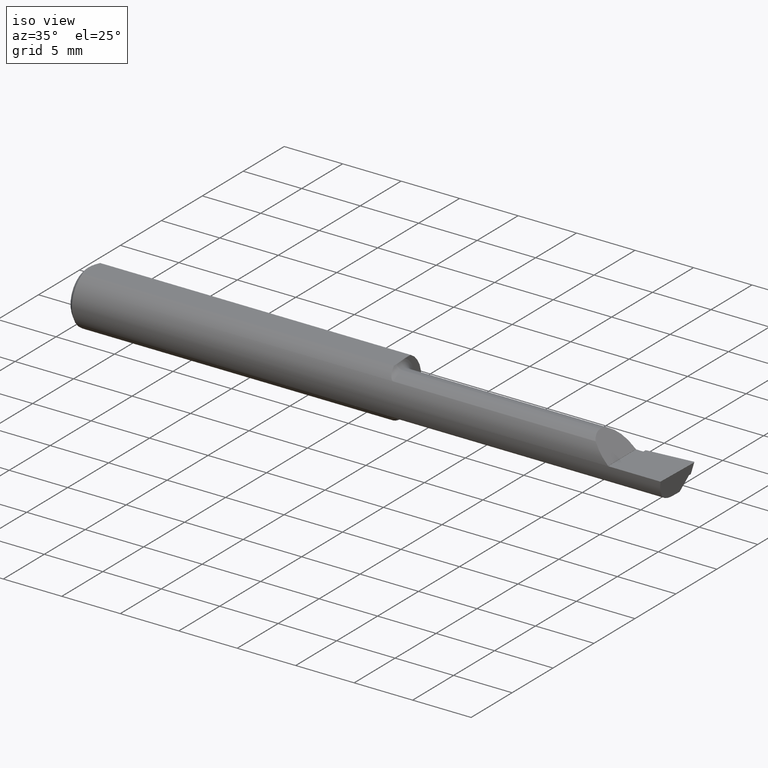
[diagram: clean part render]
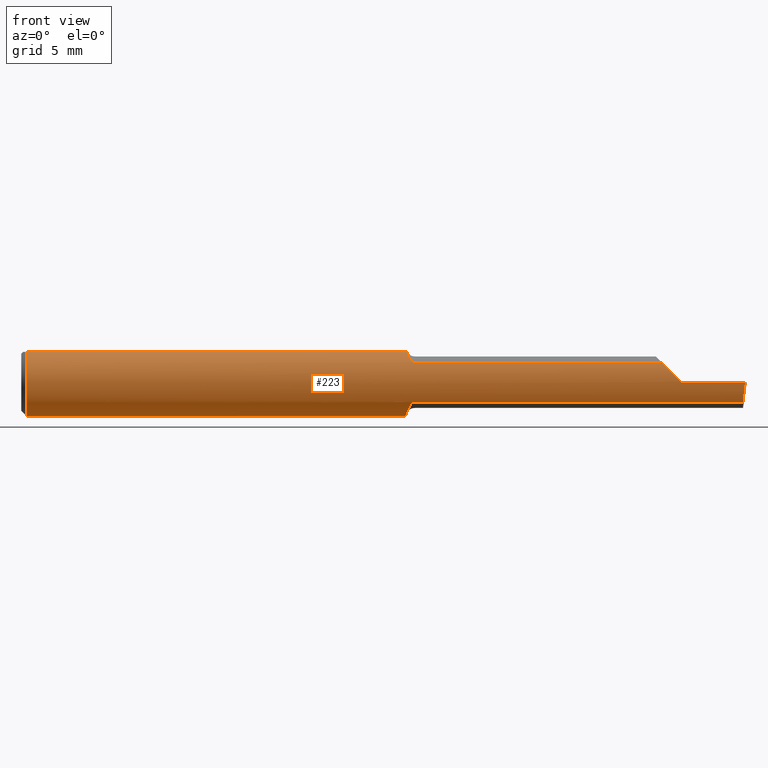
[diagram: tour spotlight — one face highlighted and labeled with its STEP entity id]
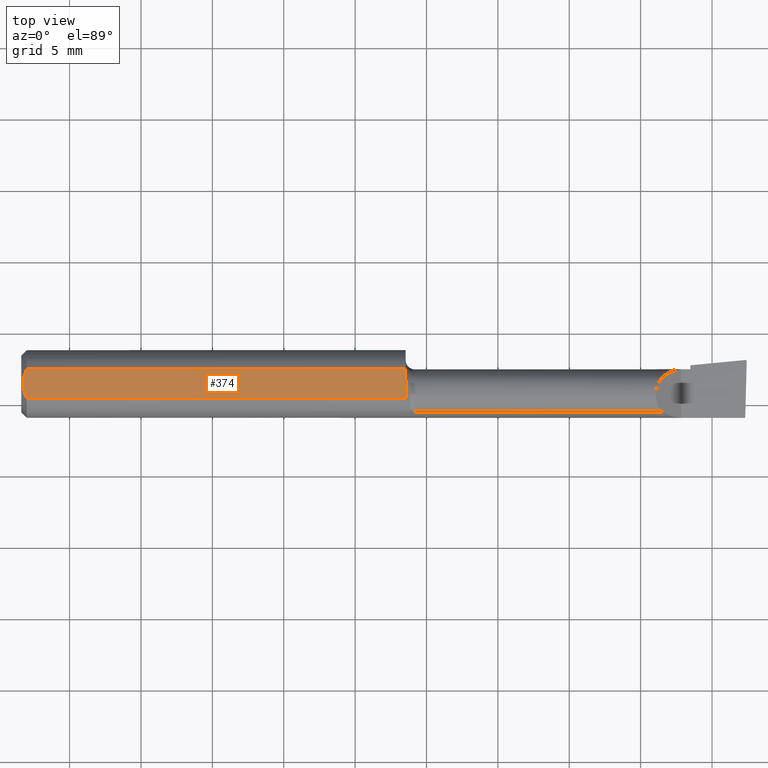
[diagram: tour spotlight — one face highlighted and labeled with its STEP entity id]
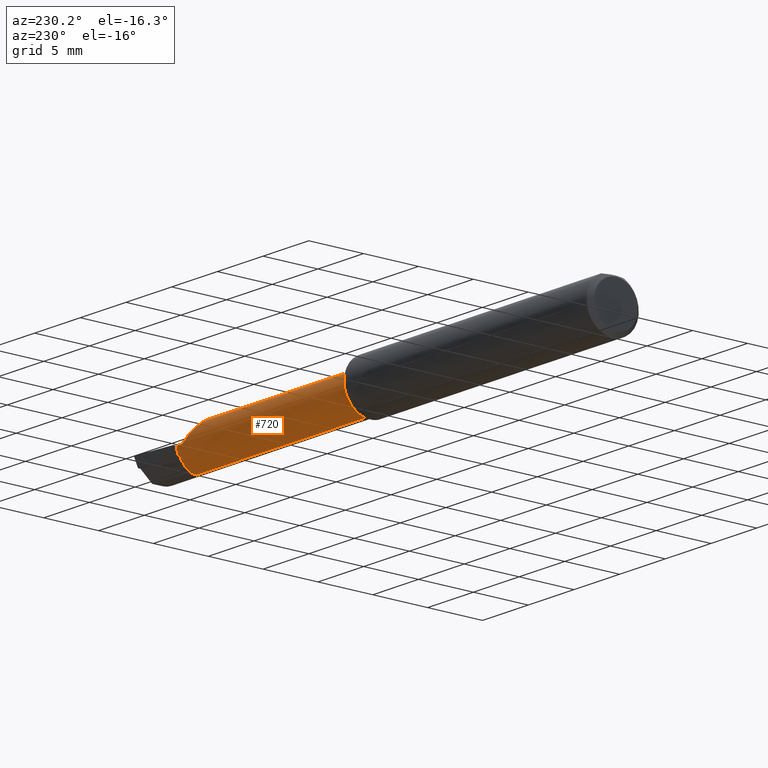
[diagram: tour spotlight — one face highlighted and labeled with its STEP entity id]
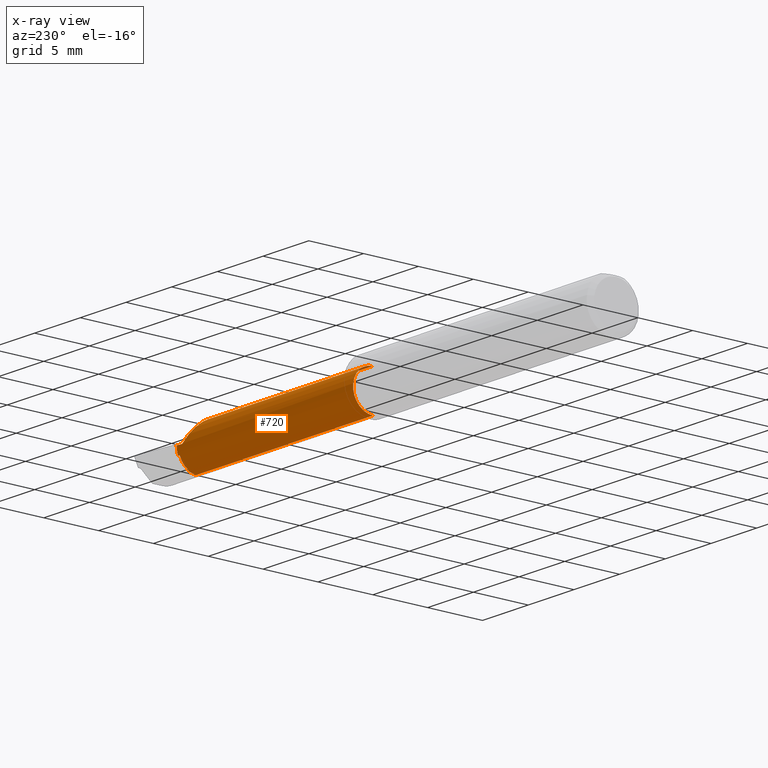
[diagram: x-ray of the same camera — body ghosted, this tour face saturated]
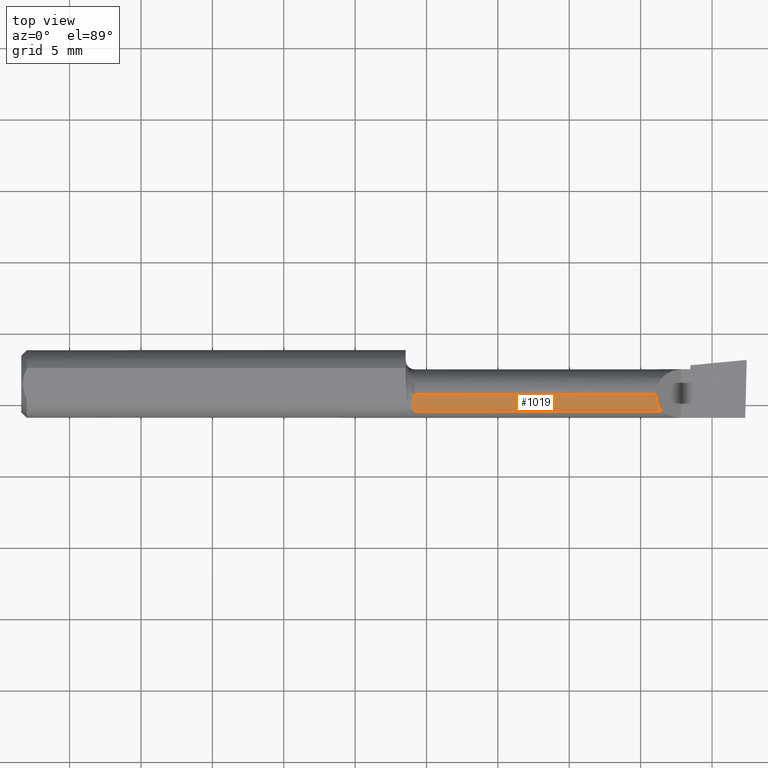
[diagram: tour spotlight — one face highlighted and labeled with its STEP entity id]
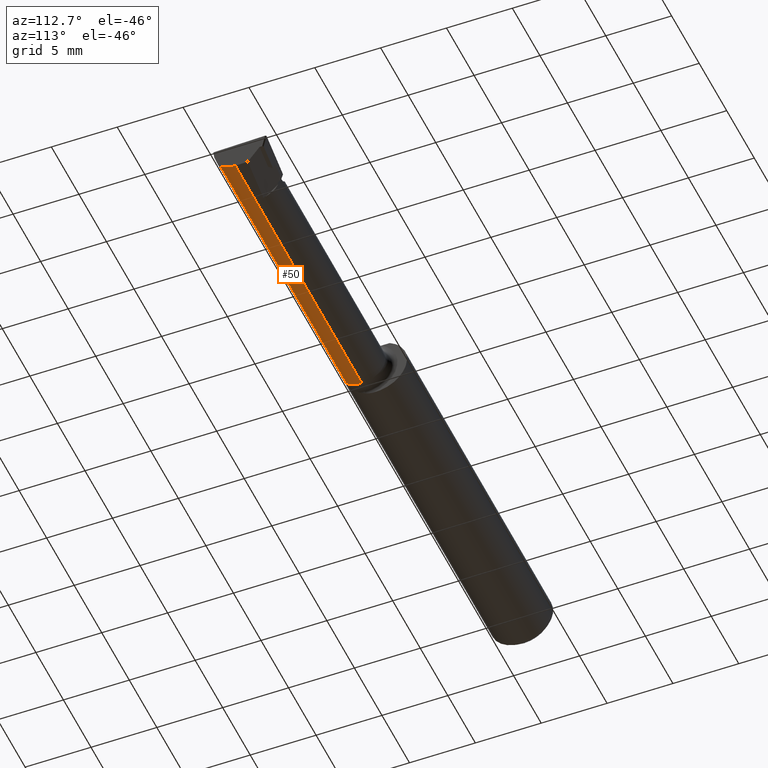
[diagram: tour spotlight — one face highlighted and labeled with its STEP entity id]
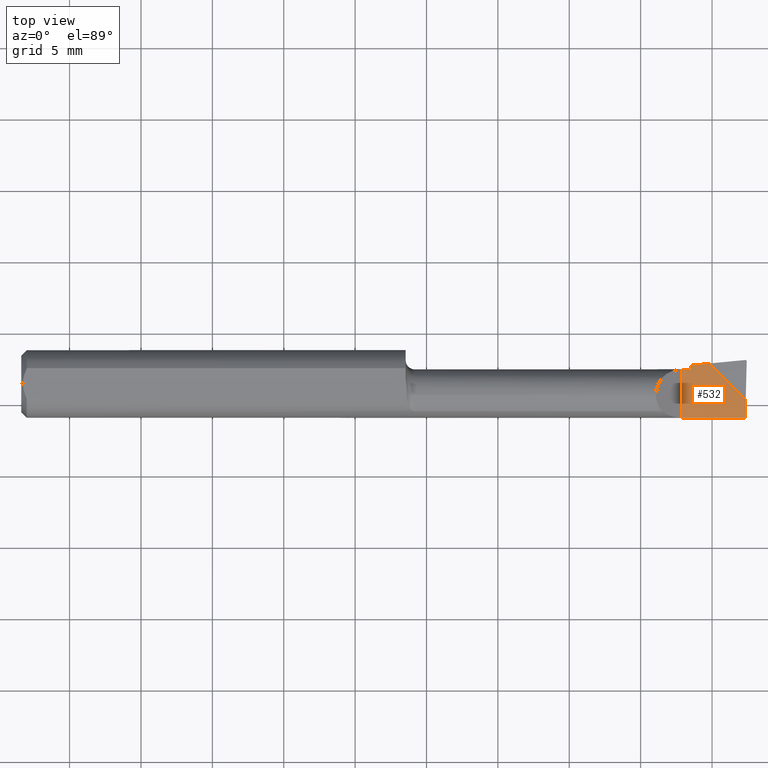
[diagram: tour spotlight — one face highlighted and labeled with its STEP entity id]
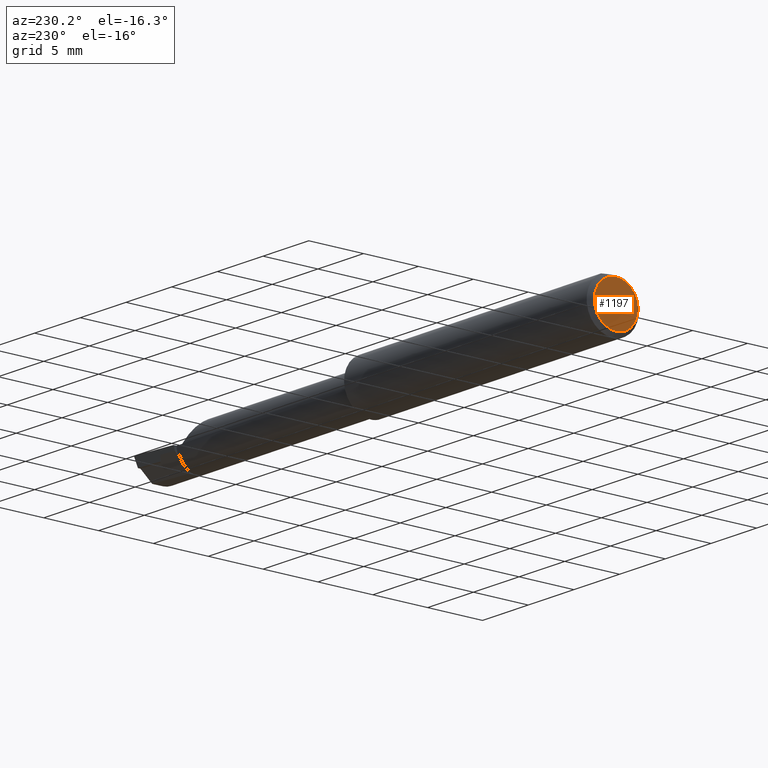
[diagram: tour spotlight — one face highlighted and labeled with its STEP entity id]
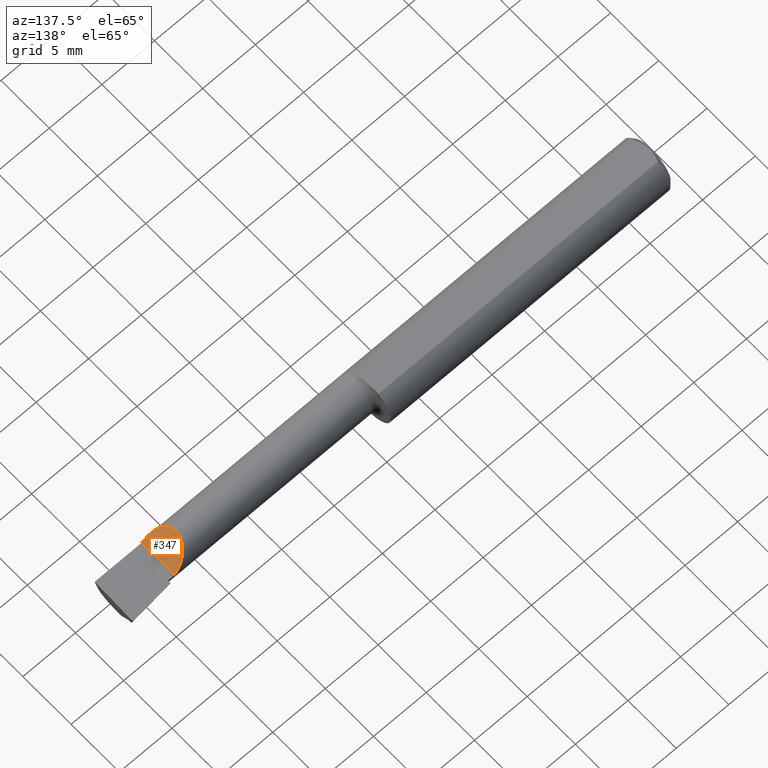
[diagram: tour spotlight — one face highlighted and labeled with its STEP entity id]
A machine part: a face-by-face anatomy tour. The part has 30 B-rep faces; the first image is the clean iso view, then the 8 largest visible faces are spotlighted one at a time (largest first), each with its STEP entity span.

Face 1 — front view, entity #223. In plain terms, the highlighted cylindrical surface (edge-blend (fillet) strip) has radius 2.3774 mm, axis along (-1, -0, -0).
Definition (entity closure, byte-faithful):
#2 = CARTESIAN_POINT ( 'NONE',  ( 26.93316680156829435, -0.5906470848080465075, -2.311350338476107602 ) ) ;
#28 = CIRCLE ( 'NONE', #598, 2.377439999999999998 ) ;
#33 = CARTESIAN_POINT ( 'NONE',  ( 50.70752380417522431, -2.377440000000000442, -3.252606517456513302E-16 ) ) ;
#39 = EDGE_CURVE ( 'NONE', #231, #933, #151, .T. ) ;
#40 = LINE ( 'NONE', #964, #292 ) ;
#49 = CARTESIAN_POINT ( 'NONE',  ( 44.85847713066682019, -1.932524967320258247, 1.384762869333169277 ) ) ;
#54 = CARTESIAN_POINT ( 'NONE',  ( 27.24627194371097261, -1.746696332958888709, 1.615645346097394741 ) ) ;
#60 = CARTESIAN_POINT ( 'NONE',  ( 50.54923430675796681, -1.932524967320262022, -1.384762869333165280 ) ) ;
#62 = AXIS2_PLACEMENT_3D ( 'NONE', #85, #1130, #760 ) ;
#63 = VERTEX_POINT ( 'NONE', #158 ) ;
#69 = CIRCLE ( 'NONE', #88, 2.377439999999999998 ) ;
#75 = CARTESIAN_POINT ( 'NONE',  ( 50.79999999999999716, -1.069216311136338415, 2.123439999999999994 ) ) ;
#85 = CARTESIAN_POINT ( 'NONE',  ( 50.79999999999999716, 0.000000000000000000, 0.000000000000000000 ) ) ;
#88 = AXIS2_PLACEMENT_3D ( 'NONE', #414, #707, #986 ) ;
#101 = ORIENTED_EDGE ( 'NONE', *, *, #920, .T. ) ;
#128 = CARTESIAN_POINT ( 'NONE',  ( 26.95359502680988939, -0.7772400000000005971, -2.246801935195890998 ) ) ;
#147 = VERTEX_POINT ( 'NONE', #829 ) ;
#151 = LINE ( 'NONE', #274, #230 ) ;
#155 = B_SPLINE_CURVE_WITH_KNOTS ( 'NONE', 3,
 ( #649, #1103, #930, #1124, #835, #54, #1212, #444, #813, #643 ),
 .UNSPECIFIED., .F., .F.,
 ( 4, 2, 2, 2, 4 ),
 ( 0.000000000000000000, 0.0001677780048688582652, 0.0003355560097377165304, 0.0006711120194754334944, 0.001342224038950866989 ),
 .UNSPECIFIED. ) ;
#158 = CARTESIAN_POINT ( 'NONE',  ( 26.92399999999999949, 1.069216311136338193, 2.123439999999999994 ) ) ;
#165 = ORIENTED_EDGE ( 'NONE', *, *, #348, .T. ) ;
#172 = CARTESIAN_POINT ( 'NONE',  ( 46.22800000000000153, -2.377391153344354358, 0.01523999999999297618 ) ) ;
#182 = EDGE_CURVE ( 'NONE', #704, #147, #738, .T. ) ;
#192 = EDGE_CURVE ( 'NONE', #217, #697, #205, .T. ) ;
#204 = CARTESIAN_POINT ( 'NONE',  ( 44.85847713066682019, -1.932524967320258247, 1.384762869333169277 ) ) ;
#205 = B_SPLINE_CURVE_WITH_KNOTS ( 'NONE', 3,
 ( #856, #1224, #2, #298 ),
 .UNSPECIFIED., .F., .F.,
 ( 4, 4 ),
 ( 0.000000000000000000, 0.0005909717450447482577 ),
 .UNSPECIFIED. ) ;
#210 = EDGE_CURVE ( 'NONE', #704, #933, #1092, .T. ) ;
#217 = VERTEX_POINT ( 'NONE', #934 ) ;
#218 = CARTESIAN_POINT ( 'NONE',  ( 0.3809999999992708108, -1.069216311139973508, 2.123439999999999994 ) ) ;
#223 = ADVANCED_FACE ( 'NONE', ( #1153 ), #386, .T. ) ;
#227 = CARTESIAN_POINT ( 'NONE',  ( 27.20065381243102820, -1.680929914004957615, -1.685690896730938082 ) ) ;
#230 = VECTOR ( 'NONE', #359, 1000.000000000000000 ) ;
#231 = VERTEX_POINT ( 'NONE', #469 ) ;
#245 = VERTEX_POINT ( 'NONE', #577 ) ;
#258 = DIRECTION ( 'NONE',  ( -1.000000000000000000, -0.000000000000000000, -0.000000000000000000 ) ) ;
#272 = ORIENTED_EDGE ( 'NONE', *, *, #1094, .T. ) ;
#274 = CARTESIAN_POINT ( 'NONE',  ( 36.89350000000000307, -1.932524967320262244, 1.384762869333165058 ) ) ;
#279 = EDGE_CURVE ( 'NONE', #615, #245, #393, .T. ) ;
#280 = ORIENTED_EDGE ( 'NONE', *, *, #967, .F. ) ;
#292 = VECTOR ( 'NONE', #711, 1000.000000000000000 ) ;
#298 = CARTESIAN_POINT ( 'NONE',  ( 26.95359502680988939, -0.7772400000000005971, -2.246801935195890998 ) ) ;
#304 = CARTESIAN_POINT ( 'NONE',  ( 26.99667307896505974, -1.069216311136338415, 2.123439999999999994 ) ) ;
#324 = ORIENTED_EDGE ( 'NONE', *, *, #539, .T. ) ;
#325 = CARTESIAN_POINT ( 'NONE',  ( 0.3809999999999993947, 0.000000000000000000, 0.000000000000000000 ) ) ;
#338 = CARTESIAN_POINT ( 'NONE',  ( 27.52373730727167711, -1.932524967320291109, -1.384762869333152180 ) ) ;
#339 = ORIENTED_EDGE ( 'NONE', *, *, #182, .F. ) ;
#341 = CARTESIAN_POINT ( 'NONE',  ( 27.55900000000000105, -1.932524967320262244, -1.384762869333165058 ) ) ;
#348 = EDGE_CURVE ( 'NONE', #697, #913, #540, .T. ) ;
#359 = DIRECTION ( 'NONE',  ( 1.000000000000000000, 0.000000000000000000, 0.000000000000000000 ) ) ;
#376 = ORIENTED_EDGE ( 'NONE', *, *, #527, .T. ) ;
#378 = CARTESIAN_POINT ( 'NONE',  ( 45.73250996477317187, -2.374214869910208581, 0.5107300352268197008 ) ) ;
#385 = LINE ( 'NONE', #75, #1105 ) ;
#386 = CYLINDRICAL_SURFACE ( 'NONE', #62, 2.377439999999999998 ) ;
#393 = CIRCLE ( 'NONE', #818, 2.377439999999999998 ) ;
#394 = DIRECTION ( 'NONE',  ( 1.000000000000000000, -0.000000000000000000, 0.000000000000000000 ) ) ;
#398 = CARTESIAN_POINT ( 'NONE',  ( 50.64602938446594749, -2.377439999999999110, -0.5008318574996006856 ) ) ;
#410 = CARTESIAN_POINT ( 'NONE',  ( 27.33524380985003077, -1.841756582495868155, -1.504269776298313932 ) ) ;
#414 = CARTESIAN_POINT ( 'NONE',  ( 26.92399999999999949, 0.000000000000000000, 0.000000000000000000 ) ) ;
#435 = EDGE_CURVE ( 'NONE', #1020, #913, #40, .T. ) ;
#444 = CARTESIAN_POINT ( 'NONE',  ( 27.08590465488719090, -1.445156649963297957, 1.899248549121113516 ) ) ;
#457 = VECTOR ( 'NONE', #521, 1000.000000000000000 ) ;
#460 = ORIENTED_EDGE ( 'NONE', *, *, #210, .T. ) ;
#469 = CARTESIAN_POINT ( 'NONE',  ( 27.55900000000000105, -1.932524967320262244, 1.384762869333165058 ) ) ;
#472 = CARTESIAN_POINT ( 'NONE',  ( 26.95359502680988939, -0.7772400000000005971, -2.246801935195890998 ) ) ;
#496 = CARTESIAN_POINT ( 'NONE',  ( 26.98206824592344688, -1.037316482243745064, -2.156833237068743969 ) ) ;
#511 = ORIENTED_EDGE ( 'NONE', *, *, #543, .T. ) ;
#521 = DIRECTION ( 'NONE',  ( 1.000000000000000000, 0.000000000000000000, 0.000000000000000000 ) ) ;
#527 = EDGE_CURVE ( 'NONE', #970, #147, #723, .T. ) ;
#539 = EDGE_CURVE ( 'NONE', #1020, #970, #998, .T. ) ;
#540 = B_SPLINE_CURVE_WITH_KNOTS ( 'NONE', 3,
 ( #128, #496, #1071, #1062, #227, #861, #410, #776, #1181, #1085, #338, #982 ),
 .UNSPECIFIED., .F., .F.,
 ( 4, 2, 2, 2, 2, 4 ),
 ( 0.0005909717450447482577, 0.001414678542264614231, 0.001826531940874547271, 0.002032458640179514008, 0.002135421989831996943, 0.002238385339484480312 ),
 .UNSPECIFIED. ) ;
#543 = EDGE_CURVE ( 'NONE', #1208, #866, #385, .T. ) ;
#570 = CARTESIAN_POINT ( 'NONE',  ( 45.26124924613768741, -2.221133849346881295, 0.9819907538622970611 ) ) ;
#577 = CARTESIAN_POINT ( 'NONE',  ( 0.3809999999999993947, 1.069216311136338193, 2.123439999999999994 ) ) ;
#598 = AXIS2_PLACEMENT_3D ( 'NONE', #325, #617, #609 ) ;
#606 = ORIENTED_EDGE ( 'NONE', *, *, #279, .T. ) ;
#609 = DIRECTION ( 'NONE',  ( 0.000000000000000000, 0.000000000000000000, -1.000000000000000000 ) ) ;
#615 = VERTEX_POINT ( 'NONE', #1229 ) ;
#617 = DIRECTION ( 'NONE',  ( 1.000000000000000000, -0.000000000000000000, -0.000000000000000000 ) ) ;
#637 = CARTESIAN_POINT ( 'NONE',  ( 46.22800000000000153, 0.000000000000000000, 0.000000000000000000 ) ) ;
#643 = CARTESIAN_POINT ( 'NONE',  ( 26.99667307896505974, -1.069216311136338415, 2.123439999999999994 ) ) ;
#649 = CARTESIAN_POINT ( 'NONE',  ( 27.55900000000000105, -1.932524967320262244, 1.384762869333165058 ) ) ;
#660 = DIRECTION ( 'NONE',  ( -1.000000000000000000, -0.000000000000000000, -0.000000000000000000 ) ) ;
#676 = ORIENTED_EDGE ( 'NONE', *, *, #435, .F. ) ;
#680 = DIRECTION ( 'NONE',  ( 1.000000000000000000, -0.000000000000000000, -0.000000000000000000 ) ) ;
#683 = DIRECTION ( 'NONE',  ( 0.000000000000000000, 0.000000000000000000, -1.000000000000000000 ) ) ;
#694 = ORIENTED_EDGE ( 'NONE', *, *, #39, .F. ) ;
#697 = VERTEX_POINT ( 'NONE', #472 ) ;
#704 = VERTEX_POINT ( 'NONE', #172 ) ;
#707 = DIRECTION ( 'NONE',  ( 1.000000000000000000, 0.000000000000000000, 0.000000000000000000 ) ) ;
#711 = DIRECTION ( 'NONE',  ( -1.000000000000000000, -0.000000000000000000, -0.000000000000000000 ) ) ;
#723 = LINE ( 'NONE', #1106, #727 ) ;
#727 = VECTOR ( 'NONE', #258, 1000.000000000000000 ) ;
#738 = CIRCLE ( 'NONE', #956, 2.377439999999999998 ) ;
#742 = CARTESIAN_POINT ( 'NONE',  ( 50.59152446203115261, -2.224239315545497586, -0.9776568775742312534 ) ) ;
#747 = ORIENTED_EDGE ( 'NONE', *, *, #192, .T. ) ;
#752 = CARTESIAN_POINT ( 'NONE',  ( 46.22800000000000153, -2.377391153344354358, 0.01523999999999297618 ) ) ;
#760 = DIRECTION ( 'NONE',  ( 0.000000000000000000, 0.000000000000000000, 1.000000000000000000 ) ) ;
#776 = CARTESIAN_POINT ( 'NONE',  ( 27.40508291531577356, -1.889504432616559315, -1.443143247077445679 ) ) ;
#810 = LINE ( 'NONE', #1076, #457 ) ;
#813 = CARTESIAN_POINT ( 'NONE',  ( 27.03412360235253686, -1.266098155268266190, 2.024304032366151862 ) ) ;
#818 = AXIS2_PLACEMENT_3D ( 'NONE', #1144, #680, #1028 ) ;
#829 = CARTESIAN_POINT ( 'NONE',  ( 46.22800000000000153, -2.377439999999999998, -6.505213034913026604E-16 ) ) ;
#835 = CARTESIAN_POINT ( 'NONE',  ( 27.33536447019917048, -1.839262941281538444, 1.507180161431583398 ) ) ;
#856 = CARTESIAN_POINT ( 'NONE',  ( 26.92399999999999949, -0.1997635294117658944, -2.369032605498910371 ) ) ;
#861 = CARTESIAN_POINT ( 'NONE',  ( 27.29833921319878698, -1.803620501935298881, -1.550125347827790989 ) ) ;
#866 = VERTEX_POINT ( 'NONE', #218 ) ;
#879 = EDGE_LOOP ( 'NONE', ( #676, #324, #376, #339, #460, #694, #272, #511, #101, #606, #1179, #280, #747, #165 ) ) ;
#881 = EDGE_CURVE ( 'NONE', #245, #63, #810, .T. ) ;
#913 = VERTEX_POINT ( 'NONE', #341 ) ;
#920 = EDGE_CURVE ( 'NONE', #866, #615, #28, .T. ) ;
#930 = CARTESIAN_POINT ( 'NONE',  ( 27.45075819883399149, -1.914296983271151387, 1.410378004019683829 ) ) ;
#932 = CARTESIAN_POINT ( 'NONE',  ( 50.70752380417522431, -2.377440000000000442, -3.252606517456513302E-16 ) ) ;
#933 = VERTEX_POINT ( 'NONE', #49 ) ;
#934 = CARTESIAN_POINT ( 'NONE',  ( 26.92399999999999949, -0.1997635294117658944, -2.369032605498910371 ) ) ;
#956 = AXIS2_PLACEMENT_3D ( 'NONE', #637, #394, #683 ) ;
#964 = CARTESIAN_POINT ( 'NONE',  ( 36.89350000000000307, -1.932524967320262244, -1.384762869333165058 ) ) ;
#967 = EDGE_CURVE ( 'NONE', #217, #63, #69, .T. ) ;
#970 = VERTEX_POINT ( 'NONE', #33 ) ;
#982 = CARTESIAN_POINT ( 'NONE',  ( 27.55900000000000105, -1.932524967320262244, -1.384762869333165058 ) ) ;
#986 = DIRECTION ( 'NONE',  ( 0.000000000000000000, 0.000000000000000000, -1.000000000000000000 ) ) ;
#998 =( BOUNDED_CURVE ( )  B_SPLINE_CURVE ( 3, ( #1046, #742, #398, #932 ),
 .UNSPECIFIED., .F., .F. ) 
 B_SPLINE_CURVE_WITH_KNOTS ( ( 4, 4 ),
 ( 0.7373942140986471383, 1.359145557743775212 ),
 .UNSPECIFIED. ) 
 CURVE ( )  GEOMETRIC_REPRESENTATION_ITEM ( )  RATIONAL_B_SPLINE_CURVE ( ( 1.000000000000000000, 0.9680440490283191979, 0.9680440490283191979, 1.000000000000000000 ) ) 
 REPRESENTATION_ITEM ( '' )  );
#1020 = VERTEX_POINT ( 'NONE', #60 ) ;
#1028 = DIRECTION ( 'NONE',  ( 0.000000000000000000, 0.000000000000000000, -1.000000000000000000 ) ) ;
#1046 = CARTESIAN_POINT ( 'NONE',  ( 50.54923430675796681, -1.932524967320262022, -1.384762869333165280 ) ) ;
#1062 = CARTESIAN_POINT ( 'NONE',  ( 27.15216824647992411, -1.585967451514963988, -1.776094618710650330 ) ) ;
#1071 = CARTESIAN_POINT ( 'NONE',  ( 27.02981098855984854, -1.274942537004539522, -2.024124026350070604 ) ) ;
#1076 = CARTESIAN_POINT ( 'NONE',  ( 50.79999999999999716, 1.069216311136338193, 2.123439999999999994 ) ) ;
#1085 = CARTESIAN_POINT ( 'NONE',  ( 27.48958784584748472, -1.925335719837831361, -1.394860538933796468 ) ) ;
#1092 =( BOUNDED_CURVE ( )  B_SPLINE_CURVE ( 3, ( #752, #378, #570, #204 ),
 .UNSPECIFIED., .F., .F. ) 
 B_SPLINE_CURVE_WITH_KNOTS ( ( 4, 4 ),
 ( 4.718799280696809539, 5.334140324029819524 ),
 .UNSPECIFIED. ) 
 CURVE ( )  GEOMETRIC_REPRESENTATION_ITEM ( )  RATIONAL_B_SPLINE_CURVE ( ( 1.000000000000000000, 0.9686944085491864254, 0.9686944085491864254, 1.000000000000000000 ) ) 
 REPRESENTATION_ITEM ( '' )  );
#1094 = EDGE_CURVE ( 'NONE', #231, #1208, #155, .T. ) ;
#1103 = CARTESIAN_POINT ( 'NONE',  ( 27.50190815464640437, -1.932524967320262688, 1.384762869333165280 ) ) ;
#1105 = VECTOR ( 'NONE', #660, 1000.000000000000000 ) ;
#1106 = CARTESIAN_POINT ( 'NONE',  ( 50.79999999999999716, -2.377439999999999998, -6.505213034913026604E-16 ) ) ;
#1124 = CARTESIAN_POINT ( 'NONE',  ( 27.36856062862259975, -1.867692931192260986, 1.471537348883146912 ) ) ;
#1130 = DIRECTION ( 'NONE',  ( -1.000000000000000000, -0.000000000000000000, -0.000000000000000000 ) ) ;
#1144 = CARTESIAN_POINT ( 'NONE',  ( 0.3809999999999993947, 0.000000000000000000, 0.000000000000000000 ) ) ;
#1153 = FACE_OUTER_BOUND ( 'NONE', #879, .T. ) ;
#1179 = ORIENTED_EDGE ( 'NONE', *, *, #881, .T. ) ;
#1181 = CARTESIAN_POINT ( 'NONE',  ( 27.43070174924277538, -1.903710356681037830, -1.424233279706486721 ) ) ;
#1208 = VERTEX_POINT ( 'NONE', #304 ) ;
#1212 = CARTESIAN_POINT ( 'NONE',  ( 27.20210128635854474, -1.676377683405150920, 1.689032053085177454 ) ) ;
#1224 = CARTESIAN_POINT ( 'NONE',  ( 26.92399999999999949, -0.3981623393507754405, -2.352303056731824160 ) ) ;
#1229 = CARTESIAN_POINT ( 'NONE',  ( 0.3809999999999993947, 0.000000000000000000, -2.377439999999999998 ) ) ;

Face 2 — top view, entity #374. In plain terms, the highlighted planar face has unit normal (0, 0, -1).
Definition (entity closure, byte-faithful):
#4 = CARTESIAN_POINT ( 'NONE',  ( 0.2408856125318506181, -0.7255295214671837467, 2.123439999999999550 ) ) ;
#15 = CARTESIAN_POINT ( 'NONE',  ( 0.000000000000000000, 1.217508106000000145, 2.123439999999999994 ) ) ;
#16 = CARTESIAN_POINT ( 'NONE',  ( 0.1269999999999935625, 2.600463940305394618E-16, 2.123439999999999994 ) ) ;
#26 = CARTESIAN_POINT ( 'NONE',  ( 26.92400000000000304, 0.2211257336660619466, 2.123439999999999994 ) ) ;
#42 = ORIENTED_EDGE ( 'NONE', *, *, #881, .F. ) ;
#63 = VERTEX_POINT ( 'NONE', #158 ) ;
#75 = CARTESIAN_POINT ( 'NONE',  ( 50.79999999999999716, -1.069216311136338415, 2.123439999999999994 ) ) ;
#91 = B_SPLINE_CURVE_WITH_KNOTS ( 'NONE', 3,
 ( #369, #177, #466, #564, #1142, #733 ),
 .UNSPECIFIED., .F., .F.,
 ( 4, 2, 4 ),
 ( 0.001498230153270103992, 0.002046825164355057288, 0.002595420175440010368 ),
 .UNSPECIFIED. ) ;
#99 = CARTESIAN_POINT ( 'NONE',  ( 27.00761519933897503, -0.7772399999999999309, 2.123439999999999994 ) ) ;
#111 = FACE_OUTER_BOUND ( 'NONE', #850, .T. ) ;
#133 = CARTESIAN_POINT ( 'NONE',  ( 26.92399999999999949, 0.4214247264352102840, 2.123439999999999994 ) ) ;
#158 = CARTESIAN_POINT ( 'NONE',  ( 26.92399999999999949, 1.069216311136338193, 2.123439999999999994 ) ) ;
#177 = CARTESIAN_POINT ( 'NONE',  ( 0.3056025758495096167, 0.9015674918982187203, 2.123439999999999550 ) ) ;
#184 = CARTESIAN_POINT ( 'NONE',  ( 26.92399999999999949, 0.4214247264352102840, 2.123439999999999994 ) ) ;
#188 = CARTESIAN_POINT ( 'NONE',  ( 27.00363976002454791, -0.9717215608026433804, 2.123439999999999994 ) ) ;
#218 = CARTESIAN_POINT ( 'NONE',  ( 0.3809999999992708108, -1.069216311139973508, 2.123439999999999994 ) ) ;
#224 = B_SPLINE_CURVE_WITH_KNOTS ( 'NONE', 3,
 ( #900, #981, #506, #870, #26, #133 ),
 .UNSPECIFIED., .F., .F.,
 ( 4, 2, 4 ),
 ( 0.0002910397895286464978, 0.0008917741008288163421, 0.001492508412128986349 ),
 .UNSPECIFIED. ) ;
#245 = VERTEX_POINT ( 'NONE', #577 ) ;
#284 = ORIENTED_EDGE ( 'NONE', *, *, #929, .T. ) ;
#304 = CARTESIAN_POINT ( 'NONE',  ( 26.99667307896505974, -1.069216311136338415, 2.123439999999999994 ) ) ;
#314 = ORIENTED_EDGE ( 'NONE', *, *, #852, .T. ) ;
#326 = EDGE_CURVE ( 'NONE', #1208, #1083, #1236, .T. ) ;
#353 = LINE ( 'NONE', #639, #616 ) ;
#369 = CARTESIAN_POINT ( 'NONE',  ( 0.3809999999999993947, 1.069216311136338193, 2.123439999999999994 ) ) ;
#374 = ADVANCED_FACE ( 'NONE', ( #111 ), #886, .F. ) ;
#385 = LINE ( 'NONE', #75, #1105 ) ;
#451 = AXIS2_PLACEMENT_3D ( 'NONE', #15, #605, #1171 ) ;
#457 = VECTOR ( 'NONE', #521, 1000.000000000000000 ) ;
#466 = CARTESIAN_POINT ( 'NONE',  ( 0.2408856689715067889, 0.7256211825147690364, 2.123440000000000438 ) ) ;
#506 = CARTESIAN_POINT ( 'NONE',  ( 26.98914375022772205, -0.3771719880055766638, 2.123440000000000438 ) ) ;
#521 = DIRECTION ( 'NONE',  ( 1.000000000000000000, 0.000000000000000000, 0.000000000000000000 ) ) ;
#543 = EDGE_CURVE ( 'NONE', #1208, #866, #385, .T. ) ;
#554 = VERTEX_POINT ( 'NONE', #758 ) ;
#557 = DIRECTION ( 'NONE',  ( 0.000000000000000000, -1.000000000000000000, 0.000000000000000000 ) ) ;
#564 = CARTESIAN_POINT ( 'NONE',  ( 0.1517920376457574660, 0.3685116538767561067, 2.123439999999999550 ) ) ;
#577 = CARTESIAN_POINT ( 'NONE',  ( 0.3809999999999993947, 1.069216311136338193, 2.123439999999999994 ) ) ;
#605 = DIRECTION ( 'NONE',  ( -0.000000000000000000, 0.000000000000000000, -1.000000000000000000 ) ) ;
#616 = VECTOR ( 'NONE', #557, 1000.000000000000000 ) ;
#639 = CARTESIAN_POINT ( 'NONE',  ( 26.92399999999999949, 1.217508106000000145, 2.123439999999999994 ) ) ;
#660 = DIRECTION ( 'NONE',  ( -1.000000000000000000, -0.000000000000000000, -0.000000000000000000 ) ) ;
#663 = CARTESIAN_POINT ( 'NONE',  ( 0.1519414030230686885, -0.3692016290386008204, 2.123440000000000438 ) ) ;
#675 = CARTESIAN_POINT ( 'NONE',  ( 0.1269999999999933682, -0.1864363821120345599, 2.123439999999999550 ) ) ;
#698 = VERTEX_POINT ( 'NONE', #184 ) ;
#733 = CARTESIAN_POINT ( 'NONE',  ( 0.1269999999999935625, 2.600463940305394618E-16, 2.123439999999999994 ) ) ;
#758 = CARTESIAN_POINT ( 'NONE',  ( 0.1269999999999935625, 2.600463940305394618E-16, 2.123439999999999994 ) ) ;
#772 = CARTESIAN_POINT ( 'NONE',  ( 26.99667307896505974, -1.069216311136338415, 2.123439999999999994 ) ) ;
#804 = EDGE_CURVE ( 'NONE', #245, #554, #91, .T. ) ;
#810 = LINE ( 'NONE', #1076, #457 ) ;
#850 = EDGE_LOOP ( 'NONE', ( #1122, #42, #1183, #314, #1227, #1163, #284 ) ) ;
#852 = EDGE_CURVE ( 'NONE', #554, #866, #1112, .T. ) ;
#866 = VERTEX_POINT ( 'NONE', #218 ) ;
#870 = CARTESIAN_POINT ( 'NONE',  ( 26.94662066276544010, 0.02166918319375995064, 2.123439999999999550 ) ) ;
#881 = EDGE_CURVE ( 'NONE', #245, #63, #810, .T. ) ;
#886 = PLANE ( 'NONE',  #451 ) ;
#900 = CARTESIAN_POINT ( 'NONE',  ( 27.00761519933897503, -0.7772399999999999309, 2.123439999999999994 ) ) ;
#929 = EDGE_CURVE ( 'NONE', #1083, #698, #224, .T. ) ;
#981 = CARTESIAN_POINT ( 'NONE',  ( 27.00761519933897858, -0.5767348924715053338, 2.123439999999999550 ) ) ;
#1029 = CARTESIAN_POINT ( 'NONE',  ( 0.3054270817402713889, -0.9011772745863527723, 2.123439999999999994 ) ) ;
#1042 = CARTESIAN_POINT ( 'NONE',  ( 27.00761519933897503, -0.8743793895717623110, 2.123439999999999994 ) ) ;
#1076 = CARTESIAN_POINT ( 'NONE',  ( 50.79999999999999716, 1.069216311136338193, 2.123439999999999994 ) ) ;
#1083 = VERTEX_POINT ( 'NONE', #1097 ) ;
#1097 = CARTESIAN_POINT ( 'NONE',  ( 27.00761519933897503, -0.7772399999999999309, 2.123439999999999994 ) ) ;
#1105 = VECTOR ( 'NONE', #660, 1000.000000000000000 ) ;
#1107 = EDGE_CURVE ( 'NONE', #63, #698, #353, .T. ) ;
#1112 = B_SPLINE_CURVE_WITH_KNOTS ( 'NONE', 3,
 ( #16, #675, #663, #4, #1029, #1132 ),
 .UNSPECIFIED., .F., .F.,
 ( 4, 2, 4 ),
 ( 0.002595420175440010368, 0.003143963582281759754, 0.003692506989123509140 ),
 .UNSPECIFIED. ) ;
#1122 = ORIENTED_EDGE ( 'NONE', *, *, #1107, .F. ) ;
#1132 = CARTESIAN_POINT ( 'NONE',  ( 0.3809999999992708108, -1.069216311139973508, 2.123439999999999994 ) ) ;
#1142 = CARTESIAN_POINT ( 'NONE',  ( 0.1269999999999934515, 0.1864539211222291382, 2.123439999999999994 ) ) ;
#1163 = ORIENTED_EDGE ( 'NONE', *, *, #326, .T. ) ;
#1171 = DIRECTION ( 'NONE',  ( -1.000000000000000000, 0.000000000000000000, 0.000000000000000000 ) ) ;
#1183 = ORIENTED_EDGE ( 'NONE', *, *, #804, .T. ) ;
#1208 = VERTEX_POINT ( 'NONE', #304 ) ;
#1227 = ORIENTED_EDGE ( 'NONE', *, *, #543, .F. ) ;
#1236 = B_SPLINE_CURVE_WITH_KNOTS ( 'NONE', 3,
 ( #772, #188, #1042, #99 ),
 .UNSPECIFIED., .F., .F.,
 ( 4, 4 ),
 ( 4.336808689942017736E-19, 0.0002910397895286464978 ),
 .UNSPECIFIED. ) ;

Face 3 — auxiliary view, entity #720. An x-ray twin of the same camera follows (body ghosted, this face saturated) — the face is partly hidden behind the body. In plain terms, the highlighted cylindrical surface (edge-blend (fillet) strip) has radius 1.8034 mm, axis along (-1, -0, -0).
Definition (entity closure, byte-faithful):
#10 = CYLINDRICAL_SURFACE ( 'NONE', #41, 1.803399999999999670 ) ;
#41 = AXIS2_PLACEMENT_3D ( 'NONE', #939, #944, #381 ) ;
#55 = CARTESIAN_POINT ( 'NONE',  ( 46.79934697924402798, -0.02144222578813860872, -1.637382449062036560 ) ) ;
#68 = CARTESIAN_POINT ( 'NONE',  ( 46.86299999999999955, -0.7772400000000002640, 0.000000000000000000 ) ) ;
#95 = LINE ( 'NONE', #1140, #635 ) ;
#137 = DIRECTION ( 'NONE',  ( 1.000000000000000000, -0.000000000000000000, 0.000000000000000000 ) ) ;
#144 = CARTESIAN_POINT ( 'NONE',  ( 46.86299999999999955, -0.7772400000000002640, 0.000000000000000000 ) ) ;
#149 = CARTESIAN_POINT ( 'NONE',  ( 27.55900000000000105, -0.7772400000000002640, 1.803399999999999670 ) ) ;
#157 = VERTEX_POINT ( 'NONE', #736 ) ;
#163 = ORIENTED_EDGE ( 'NONE', *, *, #368, .F. ) ;
#164 = AXIS2_PLACEMENT_3D ( 'NONE', #144, #1175, #1023 ) ;
#179 = VERTEX_POINT ( 'NONE', #715 ) ;
#220 = VERTEX_POINT ( 'NONE', #952 ) ;
#228 = EDGE_CURVE ( 'NONE', #789, #179, #825, .T. ) ;
#235 = CIRCLE ( 'NONE', #916, 1.803399999999999670 ) ;
#257 = VECTOR ( 'NONE', #534, 1000.000000000000000 ) ;
#302 = CARTESIAN_POINT ( 'NONE',  ( 44.43983999999998247, -0.7772400000000002640, 1.803399999999999670 ) ) ;
#309 = CARTESIAN_POINT ( 'NONE',  ( 46.81361634120837323, 0.8812577549432994983, -0.7083290161586911493 ) ) ;
#322 = DIRECTION ( 'NONE',  ( 1.000000000000000000, 0.000000000000000000, 0.000000000000000000 ) ) ;
#342 = CARTESIAN_POINT ( 'NONE',  ( 46.77062405688231195, 0.3951128588743209047, -1.445105192148193662 ) ) ;
#362 = VECTOR ( 'NONE', #906, 1000.000000000000000 ) ;
#368 = EDGE_CURVE ( 'NONE', #907, #560, #877, .T. ) ;
#381 = DIRECTION ( 'NONE',  ( 0.000000000000000000, 0.000000000000000000, 1.000000000000000000 ) ) ;
#399 = EDGE_CURVE ( 'NONE', #682, #157, #501, .T. ) ;
#404 = ORIENTED_EDGE ( 'NONE', *, *, #507, .T. ) ;
#419 = EDGE_CURVE ( 'NONE', #783, #789, #235, .T. ) ;
#434 = CARTESIAN_POINT ( 'NONE',  ( 26.92399999999999949, -0.7772400000000000420, -1.803399999999999670 ) ) ;
#463 = EDGE_CURVE ( 'NONE', #220, #1087, #942, .T. ) ;
#473 = AXIS2_PLACEMENT_3D ( 'NONE', #68, #721, #1001 ) ;
#474 = CARTESIAN_POINT ( 'NONE',  ( 44.43983999999999668, 0.2721022790230253618, 1.803399999999999670 ) ) ;
#480 = CARTESIAN_POINT ( 'NONE',  ( 46.22800000000000153, 1.026095604484089652, 0.01523999999999579510 ) ) ;
#493 = EDGE_CURVE ( 'NONE', #783, #1129, #826, .T. ) ;
#500 = EDGE_CURVE ( 'NONE', #560, #682, #951, .T. ) ;
#501 =( BOUNDED_CURVE ( )  B_SPLINE_CURVE ( 3, ( #867, #1078, #309, #516 ),
 .UNSPECIFIED., .F., .T. ) 
 B_SPLINE_CURVE_WITH_KNOTS ( ( 4, 4 ),
 ( 2.764273438468897837, 2.780336253454972262 ),
 .UNSPECIFIED. ) 
 CURVE ( )  GEOMETRIC_REPRESENTATION_ITEM ( )  RATIONAL_B_SPLINE_CURVE ( ( 1.000000000000000000, 0.9999784989468016860, 0.9999784989468016860, 1.000000000000000000 ) ) 
 REPRESENTATION_ITEM ( '' )  );
#507 = EDGE_CURVE ( 'NONE', #518, #220, #814, .T. ) ;
#516 = CARTESIAN_POINT ( 'NONE',  ( 46.86299999999999955, 0.8774176910726183554, -0.7171885981903440843 ) ) ;
#518 = VERTEX_POINT ( 'NONE', #631 ) ;
#522 = CARTESIAN_POINT ( 'NONE',  ( 46.82075468406097940, -0.01770920152721266669, -1.635659326019462068 ) ) ;
#533 = CIRCLE ( 'NONE', #473, 1.803399999999999670 ) ;
#534 = DIRECTION ( 'NONE',  ( -1.000000000000000000, -0.000000000000000000, -0.000000000000000000 ) ) ;
#560 = VERTEX_POINT ( 'NONE', #748 ) ;
#600 = CARTESIAN_POINT ( 'NONE',  ( 46.86299999999999955, -0.01026094027067620679, -1.632174831914988467 ) ) ;
#608 = ORIENTED_EDGE ( 'NONE', *, *, #463, .T. ) ;
#626 = CARTESIAN_POINT ( 'NONE',  ( 46.71170795838030898, 0.8887238055960086092, -0.6905187603853087941 ) ) ;
#631 = CARTESIAN_POINT ( 'NONE',  ( 46.86299999999999955, -0.7772400000000000420, -1.803399999999999670 ) ) ;
#635 = VECTOR ( 'NONE', #946, 1000.000000000000000 ) ;
#636 = CARTESIAN_POINT ( 'NONE',  ( 26.92399999999999949, 1.026159999999999739, -6.505213034913026604E-16 ) ) ;
#653 = ORIENTED_EDGE ( 'NONE', *, *, #493, .T. ) ;
#682 = VERTEX_POINT ( 'NONE', #1143 ) ;
#688 = ORIENTED_EDGE ( 'NONE', *, *, #500, .F. ) ;
#696 = DIRECTION ( 'NONE',  ( 0.000000000000000000, 0.000000000000000000, -1.000000000000000000 ) ) ;
#715 = CARTESIAN_POINT ( 'NONE',  ( 44.43983999999998247, -0.7772400000000002640, 1.803399999999999670 ) ) ;
#720 = ADVANCED_FACE ( 'NONE', ( #1151 ), #10, .T. ) ;
#721 = DIRECTION ( 'NONE',  ( -1.000000000000000000, -0.000000000000000000, -0.000000000000000000 ) ) ;
#736 = CARTESIAN_POINT ( 'NONE',  ( 46.86299999999999955, 0.8774176910726183554, -0.7171885981903440843 ) ) ;
#748 = CARTESIAN_POINT ( 'NONE',  ( 46.79934697924402798, -0.02144222578813860872, -1.637382449062036560 ) ) ;
#768 = CARTESIAN_POINT ( 'NONE',  ( 45.17869519072158369, 1.017227923252913335, 1.064544809278413107 ) ) ;
#779 = ORIENTED_EDGE ( 'NONE', *, *, #1002, .T. ) ;
#783 = VERTEX_POINT ( 'NONE', #1135 ) ;
#789 = VERTEX_POINT ( 'NONE', #1025 ) ;
#803 = CARTESIAN_POINT ( 'NONE',  ( 46.86299999999999955, -0.01026094027067620679, -1.632174831914988467 ) ) ;
#814 = LINE ( 'NONE', #434, #257 ) ;
#825 =( BOUNDED_CURVE ( )  B_SPLINE_CURVE ( 3, ( #480, #768, #474, #302 ),
 .UNSPECIFIED., .F., .T. ) 
 B_SPLINE_CURVE_WITH_KNOTS ( ( 4, 4 ),
 ( 4.720839785196935701, 6.283185307179586232 ),
 .UNSPECIFIED. ) 
 CURVE ( )  GEOMETRIC_REPRESENTATION_ITEM ( )  RATIONAL_B_SPLINE_CURVE ( ( 1.000000000000000000, 0.8067255137657121100, 0.8067255137657121100, 1.000000000000000000 ) ) 
 REPRESENTATION_ITEM ( '' )  );
#826 = LINE ( 'NONE', #636, #362 ) ;
#867 = CARTESIAN_POINT ( 'NONE',  ( 46.71170795838030898, 0.8887238055960086092, -0.6905187603853087941 ) ) ;
#877 =( BOUNDED_CURVE ( )  B_SPLINE_CURVE ( 3, ( #600, #969, #522, #960 ),
 .UNSPECIFIED., .F., .T. ) 
 B_SPLINE_CURVE_WITH_KNOTS ( ( 4, 4 ),
 ( 3.502849053724613970, 3.509688659804561350 ),
 .UNSPECIFIED. ) 
 CURVE ( )  GEOMETRIC_REPRESENTATION_ITEM ( )  RATIONAL_B_SPLINE_CURVE ( ( 1.000000000000000000, 0.9999961016528551294, 0.9999961016528551294, 1.000000000000000000 ) ) 
 REPRESENTATION_ITEM ( '' )  );
#892 = DIRECTION ( 'NONE',  ( 0.000000000000000000, 0.000000000000000000, -1.000000000000000000 ) ) ;
#906 = DIRECTION ( 'NONE',  ( 1.000000000000000000, 0.000000000000000000, 0.000000000000000000 ) ) ;
#907 = VERTEX_POINT ( 'NONE', #803 ) ;
#910 = CARTESIAN_POINT ( 'NONE',  ( 46.86299999999999955, 1.026159999999999739, -6.505213034913026604E-16 ) ) ;
#916 = AXIS2_PLACEMENT_3D ( 'NONE', #1177, #137, #892 ) ;
#931 = ORIENTED_EDGE ( 'NONE', *, *, #1237, .F. ) ;
#939 = CARTESIAN_POINT ( 'NONE',  ( 26.92399999999999949, -0.7772400000000002640, 0.000000000000000000 ) ) ;
#942 = CIRCLE ( 'NONE', #963, 1.803399999999999670 ) ;
#944 = DIRECTION ( 'NONE',  ( -1.000000000000000000, -0.000000000000000000, -0.000000000000000000 ) ) ;
#946 = DIRECTION ( 'NONE',  ( -1.000000000000000000, -0.000000000000000000, -0.000000000000000000 ) ) ;
#947 = ORIENTED_EDGE ( 'NONE', *, *, #419, .F. ) ;
#951 =( BOUNDED_CURVE ( )  B_SPLINE_CURVE ( 3, ( #55, #342, #1093, #626 ),
 .UNSPECIFIED., .F., .T. ) 
 B_SPLINE_CURVE_WITH_KNOTS ( ( 4, 4 ),
 ( 4.358563880917138533, 5.103979102252804267 ),
 .UNSPECIFIED. ) 
 CURVE ( )  GEOMETRIC_REPRESENTATION_ITEM ( )  RATIONAL_B_SPLINE_CURVE ( ( 1.000000000000000000, 0.9542298769898884814, 0.9542298769898884814, 1.000000000000000000 ) ) 
 REPRESENTATION_ITEM ( '' )  );
#952 = CARTESIAN_POINT ( 'NONE',  ( 27.55900000000000105, -0.7772400000000000420, -1.803399999999999670 ) ) ;
#960 = CARTESIAN_POINT ( 'NONE',  ( 46.79934697924402798, -0.02144222578813860872, -1.637382449062036560 ) ) ;
#963 = AXIS2_PLACEMENT_3D ( 'NONE', #1066, #322, #696 ) ;
#969 = CARTESIAN_POINT ( 'NONE',  ( 46.84197244036048602, -0.01398209182515797525, -1.633923446870052976 ) ) ;
#978 = ORIENTED_EDGE ( 'NONE', *, *, #228, .F. ) ;
#985 = ORIENTED_EDGE ( 'NONE', *, *, #1099, .T. ) ;
#987 = EDGE_LOOP ( 'NONE', ( #779, #404, #608, #931, #978, #947, #653, #985, #1209, #688, #163 ) ) ;
#1001 = DIRECTION ( 'NONE',  ( 0.000000000000000000, 0.000000000000000000, 1.000000000000000000 ) ) ;
#1002 = EDGE_CURVE ( 'NONE', #907, #518, #1060, .T. ) ;
#1023 = DIRECTION ( 'NONE',  ( 0.000000000000000000, 0.000000000000000000, 1.000000000000000000 ) ) ;
#1025 = CARTESIAN_POINT ( 'NONE',  ( 46.22800000000000153, 1.026095604484089652, 0.01523999999999579510 ) ) ;
#1060 = CIRCLE ( 'NONE', #164, 1.803399999999999670 ) ;
#1066 = CARTESIAN_POINT ( 'NONE',  ( 27.55900000000000105, -0.7772400000000002640, 0.000000000000000000 ) ) ;
#1078 = CARTESIAN_POINT ( 'NONE',  ( 46.76318457633242787, 0.8850265408172950377, -0.6994388790763695907 ) ) ;
#1087 = VERTEX_POINT ( 'NONE', #149 ) ;
#1093 = CARTESIAN_POINT ( 'NONE',  ( 46.74000983314125079, 0.7130537287253959633, -1.114345029246425200 ) ) ;
#1099 = EDGE_CURVE ( 'NONE', #1129, #157, #533, .T. ) ;
#1129 = VERTEX_POINT ( 'NONE', #910 ) ;
#1135 = CARTESIAN_POINT ( 'NONE',  ( 46.22800000000000153, 1.026159999999999739, -6.505213034913026604E-16 ) ) ;
#1140 = CARTESIAN_POINT ( 'NONE',  ( 26.92399999999999949, -0.7772400000000002640, 1.803399999999999670 ) ) ;
#1143 = CARTESIAN_POINT ( 'NONE',  ( 46.71170795838030898, 0.8887238055960086092, -0.6905187603853087941 ) ) ;
#1151 = FACE_OUTER_BOUND ( 'NONE', #987, .T. ) ;
#1175 = DIRECTION ( 'NONE',  ( -1.000000000000000000, -0.000000000000000000, -0.000000000000000000 ) ) ;
#1177 = CARTESIAN_POINT ( 'NONE',  ( 46.22800000000000153, -0.7772400000000002640, 0.000000000000000000 ) ) ;
#1209 = ORIENTED_EDGE ( 'NONE', *, *, #399, .F. ) ;
#1237 = EDGE_CURVE ( 'NONE', #179, #1087, #95, .T. ) ;

Face 4 — top view, entity #1019. In plain terms, the highlighted cylindrical surface (edge-blend (fillet) strip) has radius 1.8034 mm, axis along (-1, -0, -0).
Definition (entity closure, byte-faithful):
#18 = ORIENTED_EDGE ( 'NONE', *, *, #1120, .F. ) ;
#39 = EDGE_CURVE ( 'NONE', #231, #933, #151, .T. ) ;
#49 = CARTESIAN_POINT ( 'NONE',  ( 44.85847713066682019, -1.932524967320258247, 1.384762869333169277 ) ) ;
#95 = LINE ( 'NONE', #1140, #635 ) ;
#124 = ORIENTED_EDGE ( 'NONE', *, *, #1237, .T. ) ;
#149 = CARTESIAN_POINT ( 'NONE',  ( 27.55900000000000105, -0.7772400000000002640, 1.803399999999999670 ) ) ;
#151 = LINE ( 'NONE', #274, #230 ) ;
#176 = CYLINDRICAL_SURFACE ( 'NONE', #976, 1.803399999999999670 ) ;
#179 = VERTEX_POINT ( 'NONE', #715 ) ;
#230 = VECTOR ( 'NONE', #359, 1000.000000000000000 ) ;
#231 = VERTEX_POINT ( 'NONE', #469 ) ;
#250 = CARTESIAN_POINT ( 'NONE',  ( 26.92399999999999949, -0.7772400000000002640, 0.000000000000000000 ) ) ;
#274 = CARTESIAN_POINT ( 'NONE',  ( 36.89350000000000307, -1.932524967320262244, 1.384762869333165058 ) ) ;
#354 = CIRCLE ( 'NONE', #1038, 1.803399999999999670 ) ;
#359 = DIRECTION ( 'NONE',  ( 1.000000000000000000, 0.000000000000000000, 0.000000000000000000 ) ) ;
#406 = EDGE_CURVE ( 'NONE', #1087, #231, #354, .T. ) ;
#449 = DIRECTION ( 'NONE',  ( -1.000000000000000000, -0.000000000000000000, -0.000000000000000000 ) ) ;
#468 = ORIENTED_EDGE ( 'NONE', *, *, #39, .T. ) ;
#469 = CARTESIAN_POINT ( 'NONE',  ( 27.55900000000000105, -1.932524967320262244, 1.384762869333165058 ) ) ;
#550 = CARTESIAN_POINT ( 'NONE',  ( 44.85847713066682019, -1.932524967320258247, 1.384762869333169277 ) ) ;
#635 = VECTOR ( 'NONE', #946, 1000.000000000000000 ) ;
#686 = DIRECTION ( 'NONE',  ( 0.000000000000000000, 0.000000000000000000, -1.000000000000000000 ) ) ;
#715 = CARTESIAN_POINT ( 'NONE',  ( 44.43983999999998247, -0.7772400000000002640, 1.803399999999999670 ) ) ;
#728 = FACE_OUTER_BOUND ( 'NONE', #1174, .T. ) ;
#786 = DIRECTION ( 'NONE',  ( 1.000000000000000000, 0.000000000000000000, 0.000000000000000000 ) ) ;
#819 = DIRECTION ( 'NONE',  ( 0.000000000000000000, 0.000000000000000000, 1.000000000000000000 ) ) ;
#831 = CARTESIAN_POINT ( 'NONE',  ( 44.43983999999998957, -1.203853210690316367, 1.803399999999999670 ) ) ;
#933 = VERTEX_POINT ( 'NONE', #49 ) ;
#946 = DIRECTION ( 'NONE',  ( -1.000000000000000000, -0.000000000000000000, -0.000000000000000000 ) ) ;
#976 = AXIS2_PLACEMENT_3D ( 'NONE', #250, #449, #819 ) ;
#1019 = ADVANCED_FACE ( 'NONE', ( #728 ), #176, .T. ) ;
#1038 = AXIS2_PLACEMENT_3D ( 'NONE', #1165, #786, #686 ) ;
#1087 = VERTEX_POINT ( 'NONE', #149 ) ;
#1118 = CARTESIAN_POINT ( 'NONE',  ( 44.58518233795818020, -1.604944766737493644, 1.658057662041803715 ) ) ;
#1120 = EDGE_CURVE ( 'NONE', #179, #933, #1137, .T. ) ;
#1137 =( BOUNDED_CURVE ( )  B_SPLINE_CURVE ( 3, ( #1217, #831, #1118, #550 ),
 .UNSPECIFIED., .F., .T. ) 
 B_SPLINE_CURVE_WITH_KNOTS ( ( 4, 4 ),
 ( 0.000000000000000000, 0.6952988339019301467 ),
 .UNSPECIFIED. ) 
 CURVE ( )  GEOMETRIC_REPRESENTATION_ITEM ( )  RATIONAL_B_SPLINE_CURVE ( ( 1.000000000000000000, 0.9601174178332920750, 0.9601174178332920750, 1.000000000000000000 ) ) 
 REPRESENTATION_ITEM ( '' )  );
#1140 = CARTESIAN_POINT ( 'NONE',  ( 26.92399999999999949, -0.7772400000000002640, 1.803399999999999670 ) ) ;
#1165 = CARTESIAN_POINT ( 'NONE',  ( 27.55900000000000105, -0.7772400000000002640, 0.000000000000000000 ) ) ;
#1174 = EDGE_LOOP ( 'NONE', ( #18, #124, #1178, #468 ) ) ;
#1178 = ORIENTED_EDGE ( 'NONE', *, *, #406, .T. ) ;
#1217 = CARTESIAN_POINT ( 'NONE',  ( 44.43983999999998247, -0.7772400000000002640, 1.803399999999999670 ) ) ;
#1237 = EDGE_CURVE ( 'NONE', #179, #1087, #95, .T. ) ;

Face 5 — auxiliary view, entity #50. In plain terms, the highlighted cylindrical surface (edge-blend (fillet) strip) has radius 1.8034 mm, axis along (-1, -0, -0).
Definition (entity closure, byte-faithful):
#22 = ORIENTED_EDGE ( 'NONE', *, *, #435, .T. ) ;
#40 = LINE ( 'NONE', #964, #292 ) ;
#50 = ADVANCED_FACE ( 'NONE', ( #730 ), #1012, .T. ) ;
#60 = CARTESIAN_POINT ( 'NONE',  ( 50.54923430675796681, -1.932524967320262022, -1.384762869333165280 ) ) ;
#71 = CARTESIAN_POINT ( 'NONE',  ( 26.92399999999999949, -0.7772400000000002640, 0.000000000000000000 ) ) ;
#108 = AXIS2_PLACEMENT_3D ( 'NONE', #361, #824, #1205 ) ;
#129 = ORIENTED_EDGE ( 'NONE', *, *, #1054, .T. ) ;
#132 = VERTEX_POINT ( 'NONE', #927 ) ;
#203 = VECTOR ( 'NONE', #695, 1000.000000000000000 ) ;
#212 = CARTESIAN_POINT ( 'NONE',  ( 50.52831152078904609, -0.7772400000000000420, -1.803399999999999670 ) ) ;
#220 = VERTEX_POINT ( 'NONE', #952 ) ;
#238 = CARTESIAN_POINT ( 'NONE',  ( 50.51705636650020637, -1.203853210690318365, -1.803400000000000114 ) ) ;
#257 = VECTOR ( 'NONE', #534, 1000.000000000000000 ) ;
#292 = VECTOR ( 'NONE', #711, 1000.000000000000000 ) ;
#335 = EDGE_CURVE ( 'NONE', #1020, #132, #911, .T. ) ;
#341 = CARTESIAN_POINT ( 'NONE',  ( 27.55900000000000105, -1.932524967320262244, -1.384762869333165058 ) ) ;
#346 = CARTESIAN_POINT ( 'NONE',  ( 50.80000000000003979, -0.7772400000000000420, -1.803399999999999670 ) ) ;
#351 = DIRECTION ( 'NONE',  ( -1.000000000000000000, -0.000000000000000000, -0.000000000000000000 ) ) ;
#361 = CARTESIAN_POINT ( 'NONE',  ( 27.55900000000000105, -0.7772400000000002640, 0.000000000000000000 ) ) ;
#407 = CARTESIAN_POINT ( 'NONE',  ( 50.52432033428175373, -1.604944766737496975, -1.658057662041802827 ) ) ;
#434 = CARTESIAN_POINT ( 'NONE',  ( 26.92399999999999949, -0.7772400000000000420, -1.803399999999999670 ) ) ;
#435 = EDGE_CURVE ( 'NONE', #1020, #913, #40, .T. ) ;
#507 = EDGE_CURVE ( 'NONE', #518, #220, #814, .T. ) ;
#518 = VERTEX_POINT ( 'NONE', #631 ) ;
#534 = DIRECTION ( 'NONE',  ( -1.000000000000000000, -0.000000000000000000, -0.000000000000000000 ) ) ;
#556 = DIRECTION ( 'NONE',  ( 0.000000000000000000, 0.000000000000000000, 1.000000000000000000 ) ) ;
#624 = LINE ( 'NONE', #346, #203 ) ;
#631 = CARTESIAN_POINT ( 'NONE',  ( 46.86299999999999955, -0.7772400000000000420, -1.803399999999999670 ) ) ;
#695 = DIRECTION ( 'NONE',  ( -1.000000000000000000, -0.000000000000000000, -0.000000000000000000 ) ) ;
#705 = ORIENTED_EDGE ( 'NONE', *, *, #507, .F. ) ;
#711 = DIRECTION ( 'NONE',  ( -1.000000000000000000, -0.000000000000000000, -0.000000000000000000 ) ) ;
#730 = FACE_OUTER_BOUND ( 'NONE', #890, .T. ) ;
#734 = ORIENTED_EDGE ( 'NONE', *, *, #837, .F. ) ;
#814 = LINE ( 'NONE', #434, #257 ) ;
#824 = DIRECTION ( 'NONE',  ( 1.000000000000000000, 0.000000000000000000, 0.000000000000000000 ) ) ;
#837 = EDGE_CURVE ( 'NONE', #132, #518, #624, .T. ) ;
#890 = EDGE_LOOP ( 'NONE', ( #705, #734, #1030, #22, #129 ) ) ;
#911 =( BOUNDED_CURVE ( )  B_SPLINE_CURVE ( 3, ( #1035, #407, #238, #212 ),
 .UNSPECIFIED., .F., .T. ) 
 B_SPLINE_CURVE_WITH_KNOTS ( ( 4, 4 ),
 ( 5.799537242328774767, 6.494836076230707356 ),
 .UNSPECIFIED. ) 
 CURVE ( )  GEOMETRIC_REPRESENTATION_ITEM ( )  RATIONAL_B_SPLINE_CURVE ( ( 1.000000000000000000, 0.9601174178332918530, 0.9601174178332918530, 1.000000000000000000 ) ) 
 REPRESENTATION_ITEM ( '' )  );
#913 = VERTEX_POINT ( 'NONE', #341 ) ;
#927 = CARTESIAN_POINT ( 'NONE',  ( 50.52831152078904609, -0.7772400000000000420, -1.803399999999999670 ) ) ;
#952 = CARTESIAN_POINT ( 'NONE',  ( 27.55900000000000105, -0.7772400000000000420, -1.803399999999999670 ) ) ;
#964 = CARTESIAN_POINT ( 'NONE',  ( 36.89350000000000307, -1.932524967320262244, -1.384762869333165058 ) ) ;
#1012 = CYLINDRICAL_SURFACE ( 'NONE', #1187, 1.803399999999999670 ) ;
#1020 = VERTEX_POINT ( 'NONE', #60 ) ;
#1030 = ORIENTED_EDGE ( 'NONE', *, *, #335, .F. ) ;
#1035 = CARTESIAN_POINT ( 'NONE',  ( 50.54923430675796681, -1.932524967320262022, -1.384762869333165280 ) ) ;
#1054 = EDGE_CURVE ( 'NONE', #913, #220, #1148, .T. ) ;
#1148 = CIRCLE ( 'NONE', #108, 1.803399999999999670 ) ;
#1187 = AXIS2_PLACEMENT_3D ( 'NONE', #71, #351, #556 ) ;
#1205 = DIRECTION ( 'NONE',  ( 0.000000000000000000, 0.000000000000000000, -1.000000000000000000 ) ) ;

Face 6 — top view, entity #532. In plain terms, the highlighted planar face has unit normal (0, 0, -1).
Definition (entity closure, byte-faithful):
#33 = CARTESIAN_POINT ( 'NONE',  ( 50.70752380417522431, -2.377440000000000442, -3.252606517456513302E-16 ) ) ;
#34 = VERTEX_POINT ( 'NONE', #1215 ) ;
#84 = ORIENTED_EDGE ( 'NONE', *, *, #527, .F. ) ;
#98 = EDGE_CURVE ( 'NONE', #1108, #620, #174, .T. ) ;
#147 = VERTEX_POINT ( 'NONE', #829 ) ;
#153 = CARTESIAN_POINT ( 'NONE',  ( 48.19649999999999324, 1.435871463017705629, 0.000000000000000000 ) ) ;
#156 = FACE_OUTER_BOUND ( 'NONE', #1045, .T. ) ;
#174 = LINE ( 'NONE', #725, #851 ) ;
#185 = EDGE_CURVE ( 'NONE', #970, #620, #1159, .T. ) ;
#195 = DIRECTION ( 'NONE',  ( -0.9953961983671787417, -0.09584575252022446701, 0.000000000000000000 ) ) ;
#241 = ORIENTED_EDGE ( 'NONE', *, *, #98, .F. ) ;
#242 = CARTESIAN_POINT ( 'NONE',  ( 46.86299999999999955, 3.174999999999999822, -6.505213034913026604E-16 ) ) ;
#258 = DIRECTION ( 'NONE',  ( -1.000000000000000000, -0.000000000000000000, -0.000000000000000000 ) ) ;
#286 = CARTESIAN_POINT ( 'NONE',  ( 46.22800000000000153, 3.174999999999999822, -6.505213034913026604E-16 ) ) ;
#316 = EDGE_CURVE ( 'NONE', #147, #783, #662, .T. ) ;
#320 = ORIENTED_EDGE ( 'NONE', *, *, #1191, .T. ) ;
#362 = VECTOR ( 'NONE', #906, 1000.000000000000000 ) ;
#430 = VECTOR ( 'NONE', #485, 1000.000000000000000 ) ;
#485 = DIRECTION ( 'NONE',  ( 0.02637339639455558299, 0.9996521614854917415, 0.000000000000000000 ) ) ;
#486 = LINE ( 'NONE', #864, #802 ) ;
#493 = EDGE_CURVE ( 'NONE', #783, #1129, #826, .T. ) ;
#527 = EDGE_CURVE ( 'NONE', #970, #147, #723, .T. ) ;
#532 = ADVANCED_FACE ( 'NONE', ( #156 ), #545, .F. ) ;
#545 = PLANE ( 'NONE',  #1044 ) ;
#590 = CARTESIAN_POINT ( 'NONE',  ( 46.22800000000000153, 3.174999999999999822, -6.505213034913026604E-16 ) ) ;
#620 = VERTEX_POINT ( 'NONE', #949 ) ;
#627 = ORIENTED_EDGE ( 'NONE', *, *, #989, .F. ) ;
#636 = CARTESIAN_POINT ( 'NONE',  ( 26.92399999999999949, 1.026159999999999739, -6.505213034913026604E-16 ) ) ;
#662 = LINE ( 'NONE', #286, #872 ) ;
#665 = DIRECTION ( 'NONE',  ( -0.000000000000000000, 0.000000000000000000, -1.000000000000000000 ) ) ;
#666 = DIRECTION ( 'NONE',  ( -0.000000000000000000, 1.000000000000000000, -0.000000000000000000 ) ) ;
#723 = LINE ( 'NONE', #1106, #727 ) ;
#725 = CARTESIAN_POINT ( 'NONE',  ( 50.79999999999999716, -1.167628536982268761, 0.000000000000000000 ) ) ;
#727 = VECTOR ( 'NONE', #258, 1000.000000000000000 ) ;
#783 = VERTEX_POINT ( 'NONE', #1135 ) ;
#802 = VECTOR ( 'NONE', #195, 1000.000000000000000 ) ;
#826 = LINE ( 'NONE', #636, #362 ) ;
#829 = CARTESIAN_POINT ( 'NONE',  ( 46.22800000000000153, -2.377439999999999998, -6.505213034913026604E-16 ) ) ;
#851 = VECTOR ( 'NONE', #1109, 1000.000000000000114 ) ;
#864 = CARTESIAN_POINT ( 'NONE',  ( 46.41200412917777385, 1.264044054103794723, -6.505213034913026604E-16 ) ) ;
#872 = VECTOR ( 'NONE', #666, 1000.000000000000000 ) ;
#897 = ORIENTED_EDGE ( 'NONE', *, *, #185, .T. ) ;
#906 = DIRECTION ( 'NONE',  ( 1.000000000000000000, 0.000000000000000000, 0.000000000000000000 ) ) ;
#910 = CARTESIAN_POINT ( 'NONE',  ( 46.86299999999999955, 1.026159999999999739, -6.505213034913026604E-16 ) ) ;
#938 = VECTOR ( 'NONE', #1090, 1000.000000000000000 ) ;
#949 = CARTESIAN_POINT ( 'NONE',  ( 50.74099835886113397, -1.108626895843400018, 0.000000000000000000 ) ) ;
#970 = VERTEX_POINT ( 'NONE', #33 ) ;
#989 = EDGE_CURVE ( 'NONE', #1129, #34, #1084, .T. ) ;
#1040 = DIRECTION ( 'NONE',  ( -1.000000000000000000, 0.000000000000000000, 0.000000000000000000 ) ) ;
#1044 = AXIS2_PLACEMENT_3D ( 'NONE', #590, #665, #1040 ) ;
#1045 = EDGE_LOOP ( 'NONE', ( #897, #241, #320, #627, #1172, #1134, #84 ) ) ;
#1055 = CARTESIAN_POINT ( 'NONE',  ( 50.85079380910103453, 3.053038803620905295, -6.505213034913026604E-16 ) ) ;
#1084 = LINE ( 'NONE', #242, #938 ) ;
#1090 = DIRECTION ( 'NONE',  ( 0.000000000000000000, 1.000000000000000000, 0.000000000000000000 ) ) ;
#1106 = CARTESIAN_POINT ( 'NONE',  ( 50.79999999999999716, -2.377439999999999998, -6.505213034913026604E-16 ) ) ;
#1108 = VERTEX_POINT ( 'NONE', #153 ) ;
#1109 = DIRECTION ( 'NONE',  ( 0.7071067811865513475, -0.7071067811865435759, -0.000000000000000000 ) ) ;
#1129 = VERTEX_POINT ( 'NONE', #910 ) ;
#1134 = ORIENTED_EDGE ( 'NONE', *, *, #316, .F. ) ;
#1135 = CARTESIAN_POINT ( 'NONE',  ( 46.22800000000000153, 1.026159999999999739, -6.505213034913026604E-16 ) ) ;
#1159 = LINE ( 'NONE', #1055, #430 ) ;
#1172 = ORIENTED_EDGE ( 'NONE', *, *, #493, .F. ) ;
#1191 = EDGE_CURVE ( 'NONE', #1108, #34, #486, .T. ) ;
#1215 = CARTESIAN_POINT ( 'NONE',  ( 46.86299999999999955, 1.307470017246287863, -6.505213034913026604E-16 ) ) ;

Face 7 — auxiliary view, entity #1197. In plain terms, the highlighted planar face has unit normal (1, 0, 0).
Definition (entity closure, byte-faithful):
#65 = DIRECTION ( 'NONE',  ( 0.000000000000000000, 0.000000000000000000, -1.000000000000000000 ) ) ;
#127 = EDGE_CURVE ( 'NONE', #972, #1063, #330, .T. ) ;
#168 = CARTESIAN_POINT ( 'NONE',  ( 0.000000000000000000, 2.678229070927318227E-16, 1.996440000000009096 ) ) ;
#248 = DIRECTION ( 'NONE',  ( -1.000000000000000000, -0.000000000000000000, -0.000000000000000000 ) ) ;
#273 = AXIS2_PLACEMENT_3D ( 'NONE', #593, #402, #597 ) ;
#310 = AXIS2_PLACEMENT_3D ( 'NONE', #995, #248, #65 ) ;
#312 = ORIENTED_EDGE ( 'NONE', *, *, #127, .T. ) ;
#330 = CIRCLE ( 'NONE', #310, 1.996440000000009096 ) ;
#377 = CIRCLE ( 'NONE', #273, 1.996440000000009096 ) ;
#402 = DIRECTION ( 'NONE',  ( -1.000000000000000000, -0.000000000000000000, -0.000000000000000000 ) ) ;
#499 = ORIENTED_EDGE ( 'NONE', *, *, #1167, .T. ) ;
#563 = EDGE_LOOP ( 'NONE', ( #312, #499 ) ) ;
#593 = CARTESIAN_POINT ( 'NONE',  ( 0.000000000000000000, 0.000000000000000000, 0.000000000000000000 ) ) ;
#597 = DIRECTION ( 'NONE',  ( 0.000000000000000000, 0.000000000000000000, -1.000000000000000000 ) ) ;
#706 = AXIS2_PLACEMENT_3D ( 'NONE', #1161, #746, #762 ) ;
#714 = CARTESIAN_POINT ( 'NONE',  ( 0.000000000000000000, 0.000000000000000000, -1.996440000000009096 ) ) ;
#746 = DIRECTION ( 'NONE',  ( 1.000000000000000000, 0.000000000000000000, 0.000000000000000000 ) ) ;
#762 = DIRECTION ( 'NONE',  ( 0.000000000000000000, 0.000000000000000000, -1.000000000000000000 ) ) ;
#773 = PLANE ( 'NONE',  #706 ) ;
#972 = VERTEX_POINT ( 'NONE', #714 ) ;
#995 = CARTESIAN_POINT ( 'NONE',  ( 0.000000000000000000, 0.000000000000000000, 0.000000000000000000 ) ) ;
#1050 = FACE_OUTER_BOUND ( 'NONE', #563, .T. ) ;
#1063 = VERTEX_POINT ( 'NONE', #168 ) ;
#1161 = CARTESIAN_POINT ( 'NONE',  ( 0.000000000000000000, 0.000000000000000000, 0.000000000000000000 ) ) ;
#1167 = EDGE_CURVE ( 'NONE', #1063, #972, #377, .T. ) ;
#1197 = ADVANCED_FACE ( 'NONE', ( #1050 ), #773, .F. ) ;

Face 8 — auxiliary view, entity #347. In plain terms, the highlighted planar face has unit normal (0.7071, 0, 0.7071).
Definition (entity closure, byte-faithful):
#24 = ORIENTED_EDGE ( 'NONE', *, *, #1120, .T. ) ;
#29 = CARTESIAN_POINT ( 'NONE',  ( 46.22800000000000153, 3.174999999999998934, 0.01523999999999579510 ) ) ;
#47 = ORIENTED_EDGE ( 'NONE', *, *, #210, .F. ) ;
#49 = CARTESIAN_POINT ( 'NONE',  ( 44.85847713066682019, -1.932524967320258247, 1.384762869333169277 ) ) ;
#64 = VECTOR ( 'NONE', #373, 1000.000000000000000 ) ;
#172 = CARTESIAN_POINT ( 'NONE',  ( 46.22800000000000153, -2.377391153344354358, 0.01523999999999297618 ) ) ;
#179 = VERTEX_POINT ( 'NONE', #715 ) ;
#204 = CARTESIAN_POINT ( 'NONE',  ( 44.85847713066682019, -1.932524967320258247, 1.384762869333169277 ) ) ;
#210 = EDGE_CURVE ( 'NONE', #704, #933, #1092, .T. ) ;
#215 = EDGE_LOOP ( 'NONE', ( #623, #594, #24, #47 ) ) ;
#228 = EDGE_CURVE ( 'NONE', #789, #179, #825, .T. ) ;
#302 = CARTESIAN_POINT ( 'NONE',  ( 44.43983999999998247, -0.7772400000000002640, 1.803399999999999670 ) ) ;
#347 = ADVANCED_FACE ( 'NONE', ( #491 ), #975, .T. ) ;
#373 = DIRECTION ( 'NONE',  ( 0.000000000000000000, -1.000000000000000000, 0.000000000000000000 ) ) ;
#378 = CARTESIAN_POINT ( 'NONE',  ( 45.73250996477317187, -2.374214869910208581, 0.5107300352268197008 ) ) ;
#464 = CARTESIAN_POINT ( 'NONE',  ( 46.22800000000000153, -1.069216311139973508, 0.01523999999999579510 ) ) ;
#474 = CARTESIAN_POINT ( 'NONE',  ( 44.43983999999999668, 0.2721022790230253618, 1.803399999999999670 ) ) ;
#480 = CARTESIAN_POINT ( 'NONE',  ( 46.22800000000000153, 1.026095604484089652, 0.01523999999999579510 ) ) ;
#491 = FACE_OUTER_BOUND ( 'NONE', #215, .T. ) ;
#550 = CARTESIAN_POINT ( 'NONE',  ( 44.85847713066682019, -1.932524967320258247, 1.384762869333169277 ) ) ;
#570 = CARTESIAN_POINT ( 'NONE',  ( 45.26124924613768741, -2.221133849346881295, 0.9819907538622970611 ) ) ;
#594 = ORIENTED_EDGE ( 'NONE', *, *, #228, .T. ) ;
#612 = AXIS2_PLACEMENT_3D ( 'NONE', #29, #1189, #619 ) ;
#619 = DIRECTION ( 'NONE',  ( 0.7071067811865487940, 0.000000000000000000, -0.7071067811865463515 ) ) ;
#623 = ORIENTED_EDGE ( 'NONE', *, *, #1052, .F. ) ;
#704 = VERTEX_POINT ( 'NONE', #172 ) ;
#715 = CARTESIAN_POINT ( 'NONE',  ( 44.43983999999998247, -0.7772400000000002640, 1.803399999999999670 ) ) ;
#752 = CARTESIAN_POINT ( 'NONE',  ( 46.22800000000000153, -2.377391153344354358, 0.01523999999999297618 ) ) ;
#768 = CARTESIAN_POINT ( 'NONE',  ( 45.17869519072158369, 1.017227923252913335, 1.064544809278413107 ) ) ;
#789 = VERTEX_POINT ( 'NONE', #1025 ) ;
#825 =( BOUNDED_CURVE ( )  B_SPLINE_CURVE ( 3, ( #480, #768, #474, #302 ),
 .UNSPECIFIED., .F., .T. ) 
 B_SPLINE_CURVE_WITH_KNOTS ( ( 4, 4 ),
 ( 4.720839785196935701, 6.283185307179586232 ),
 .UNSPECIFIED. ) 
 CURVE ( )  GEOMETRIC_REPRESENTATION_ITEM ( )  RATIONAL_B_SPLINE_CURVE ( ( 1.000000000000000000, 0.8067255137657121100, 0.8067255137657121100, 1.000000000000000000 ) ) 
 REPRESENTATION_ITEM ( '' )  );
#831 = CARTESIAN_POINT ( 'NONE',  ( 44.43983999999998957, -1.203853210690316367, 1.803399999999999670 ) ) ;
#933 = VERTEX_POINT ( 'NONE', #49 ) ;
#975 = PLANE ( 'NONE',  #612 ) ;
#1014 = LINE ( 'NONE', #464, #64 ) ;
#1025 = CARTESIAN_POINT ( 'NONE',  ( 46.22800000000000153, 1.026095604484089652, 0.01523999999999579510 ) ) ;
#1052 = EDGE_CURVE ( 'NONE', #789, #704, #1014, .T. ) ;
#1092 =( BOUNDED_CURVE ( )  B_SPLINE_CURVE ( 3, ( #752, #378, #570, #204 ),
 .UNSPECIFIED., .F., .F. ) 
 B_SPLINE_CURVE_WITH_KNOTS ( ( 4, 4 ),
 ( 4.718799280696809539, 5.334140324029819524 ),
 .UNSPECIFIED. ) 
 CURVE ( )  GEOMETRIC_REPRESENTATION_ITEM ( )  RATIONAL_B_SPLINE_CURVE ( ( 1.000000000000000000, 0.9686944085491864254, 0.9686944085491864254, 1.000000000000000000 ) ) 
 REPRESENTATION_ITEM ( '' )  );
#1118 = CARTESIAN_POINT ( 'NONE',  ( 44.58518233795818020, -1.604944766737493644, 1.658057662041803715 ) ) ;
#1120 = EDGE_CURVE ( 'NONE', #179, #933, #1137, .T. ) ;
#1137 =( BOUNDED_CURVE ( )  B_SPLINE_CURVE ( 3, ( #1217, #831, #1118, #550 ),
 .UNSPECIFIED., .F., .T. ) 
 B_SPLINE_CURVE_WITH_KNOTS ( ( 4, 4 ),
 ( 0.000000000000000000, 0.6952988339019301467 ),
 .UNSPECIFIED. ) 
 CURVE ( )  GEOMETRIC_REPRESENTATION_ITEM ( )  RATIONAL_B_SPLINE_CURVE ( ( 1.000000000000000000, 0.9601174178332920750, 0.9601174178332920750, 1.000000000000000000 ) ) 
 REPRESENTATION_ITEM ( '' )  );
#1189 = DIRECTION ( 'NONE',  ( 0.7071067811865463515, -0.000000000000000000, 0.7071067811865487940 ) ) ;
#1217 = CARTESIAN_POINT ( 'NONE',  ( 44.43983999999998247, -0.7772400000000002640, 1.803399999999999670 ) ) ;